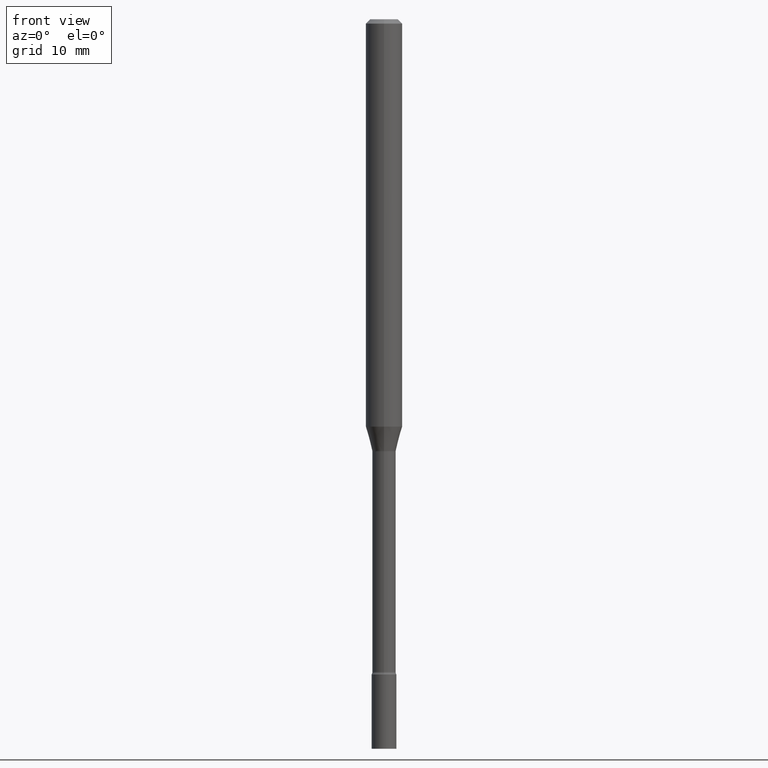
[diagram: clean part render]
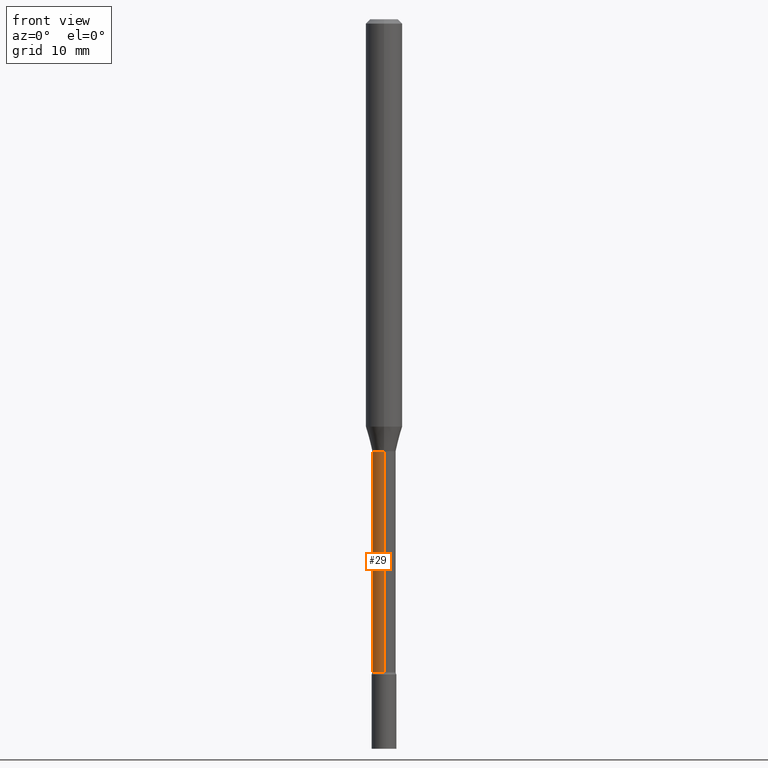
[diagram: same view with one face highlighted and labeled with its STEP entity id]
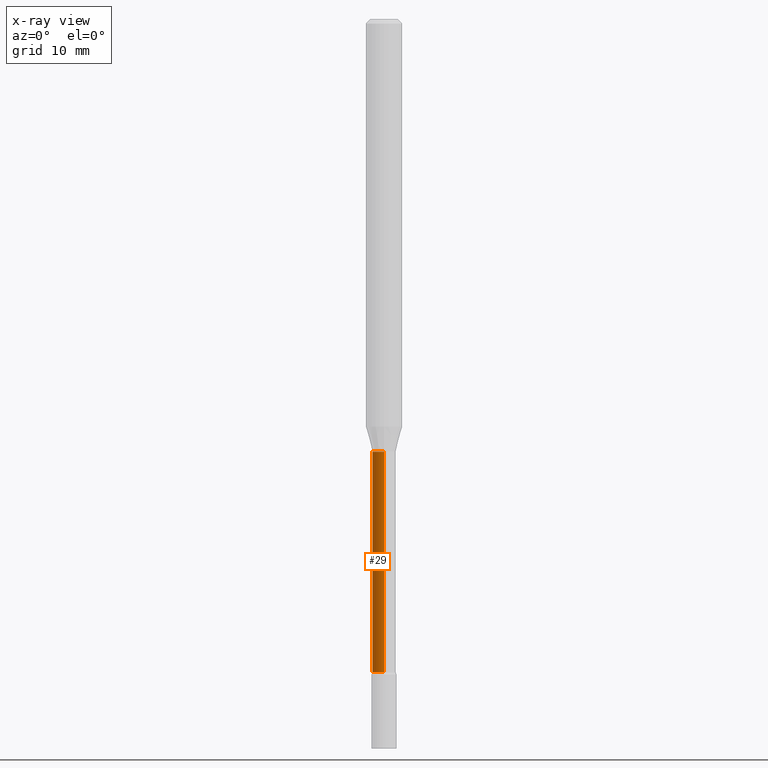
[diagram: x-ray of the same camera — body ghosted, the highlighted face saturated]
A machine part, front view. The second image highlights one B-rep face of the part: STEP entity #29.
The next image is the same camera in x-ray: the body ghosted, the highlighted face saturated — about 0% of this face is hidden behind the body in this view.
In plain terms, the highlighted cylindrical surface (edge-blend (fillet) strip) has radius 1.0147 mm, axis along (-0, 0, 1).
Its self-contained STEP definition (entity closure, byte-faithful):
#10 = CARTESIAN_POINT ( 'NONE',  ( 2.838618229361602665E-16, 0.03995000000000004103, -1.394862244673067484E-16 ) ) ;
#11 = CARTESIAN_POINT ( 'NONE',  ( -2.789693589735121927E-16, -0.03995000000000789586, -2.236633549139569688 ) ) ;
#24 = ORIENTED_EDGE ( 'NONE', *, *, #224, .F. ) ;
#29 = ADVANCED_FACE ( 'NONE', ( #70 ), #263, .T. ) ;
#31 = AXIS2_PLACEMENT_3D ( 'NONE', #168, #174, #95 ) ;
#64 = VERTEX_POINT ( 'NONE', #11 ) ;
#70 = FACE_OUTER_BOUND ( 'NONE', #271, .T. ) ;
#95 = DIRECTION ( 'NONE',  ( -6.982962677686265133E-15, -1.000000000000000000, 6.838167693777879394E-15 ) ) ;
#109 = EDGE_CURVE ( 'NONE', #64, #519, #418, .T. ) ;
#125 = CARTESIAN_POINT ( 'NONE',  ( 2.929212428171563580E-16, 0.03994999999999226947, -2.236633549139570132 ) ) ;
#149 = CARTESIAN_POINT ( 'NONE',  ( 2.838618229362148951E-16, 0.03994999999999483686, -1.481974787463811394 ) ) ;
#155 = EDGE_CURVE ( 'NONE', #255, #482, #413, .T. ) ;
#158 = CIRCLE ( 'NONE', #31, 0.03995000000000000634 ) ;
#166 = ORIENTED_EDGE ( 'NONE', *, *, #109, .T. ) ;
#168 = CARTESIAN_POINT ( 'NONE',  ( 3.624083093403872837E-29, -5.174344627260730538E-15, -1.481974787463811172 ) ) ;
#170 = ORIENTED_EDGE ( 'NONE', *, *, #467, .T. ) ;
#174 = DIRECTION ( 'NONE',  ( -2.445441801075425524E-29, 3.491520011697287074E-15, 1.000000000000000000 ) ) ;
#214 = CIRCLE ( 'NONE', #405, 0.03995000000000008267 ) ;
#221 = CARTESIAN_POINT ( 'NONE',  ( 0.000000000000000000, 0.000000000000000000, 0.000000000000000000 ) ) ;
#224 = EDGE_CURVE ( 'NONE', #482, #519, #158, .T. ) ;
#241 = AXIS2_PLACEMENT_3D ( 'NONE', #221, #432, #316 ) ;
#249 = DIRECTION ( 'NONE',  ( -6.982962677686266711E-15, -1.000000000000000000, 6.838167693777865983E-15 ) ) ;
#255 = VERTEX_POINT ( 'NONE', #125 ) ;
#261 = CARTESIAN_POINT ( 'NONE',  ( -2.789693589735301393E-16, -0.03995000000000518275, -1.481974787463810728 ) ) ;
#263 = CYLINDRICAL_SURFACE ( 'NONE', #241, 0.03995000000000004103 ) ;
#270 = ORIENTED_EDGE ( 'NONE', *, *, #155, .F. ) ;
#271 = EDGE_LOOP ( 'NONE', ( #270, #170, #166, #24 ) ) ;
#274 = DIRECTION ( 'NONE',  ( -2.445441801075425524E-29, 3.491520011697287074E-15, 1.000000000000000000 ) ) ;
#284 = DIRECTION ( 'NONE',  ( -2.445441801075425804E-29, 3.491520011697286679E-15, 1.000000000000000000 ) ) ;
#316 = DIRECTION ( 'NONE',  ( -6.982962677686265133E-15, -1.000000000000000000, 3.491520011697286679E-15 ) ) ;
#382 = CARTESIAN_POINT ( 'NONE',  ( -2.789693589735665748E-16, -0.03995000000000004103, 1.394862244673067484E-16 ) ) ;
#395 = VECTOR ( 'NONE', #284, 39.37007874015748143 ) ;
#405 = AXIS2_PLACEMENT_3D ( 'NONE', #510, #274, #249 ) ;
#413 = LINE ( 'NONE', #10, #485 ) ;
#418 = LINE ( 'NONE', #382, #395 ) ;
#432 = DIRECTION ( 'NONE',  ( -2.445441801075425524E-29, 3.491520011697287074E-15, 1.000000000000000000 ) ) ;
#467 = EDGE_CURVE ( 'NONE', #255, #64, #214, .T. ) ;
#482 = VERTEX_POINT ( 'NONE', #149 ) ;
#483 = DIRECTION ( 'NONE',  ( -2.445441801075425804E-29, 3.491520011697286679E-15, 1.000000000000000000 ) ) ;
#485 = VECTOR ( 'NONE', #483, 39.37007874015748143 ) ;
#510 = CARTESIAN_POINT ( 'NONE',  ( 5.469557174753590330E-29, -7.809250795654335165E-15, -2.236633549139569688 ) ) ;
#519 = VERTEX_POINT ( 'NONE', #261 ) ;